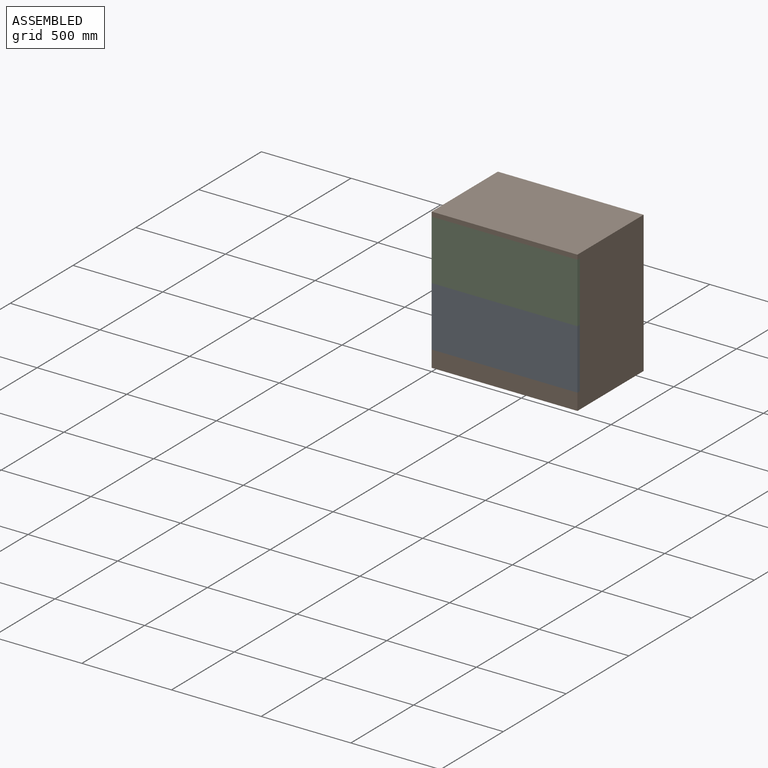
[diagram: assembled view]
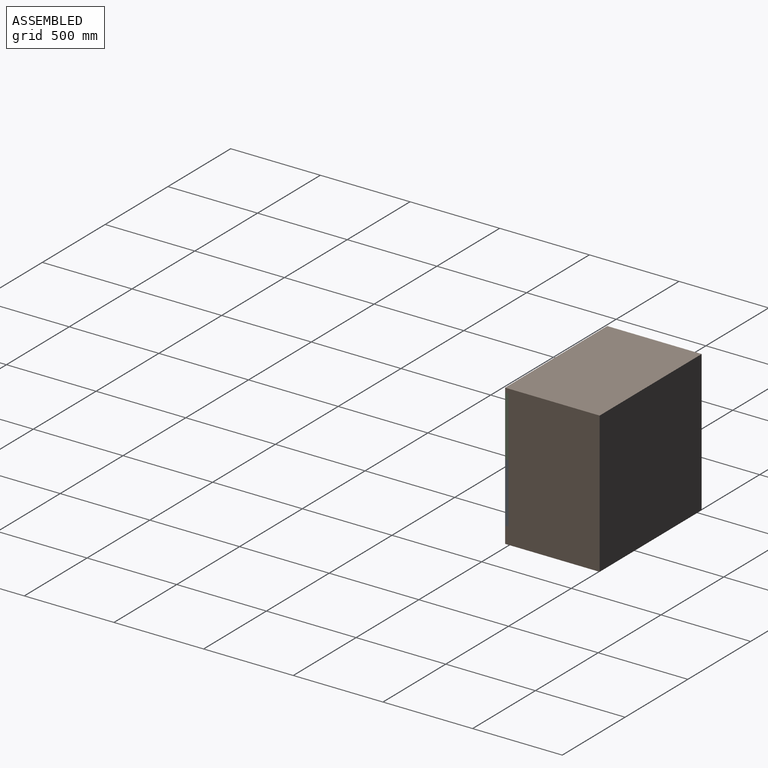
[diagram: assembled view, second angle]
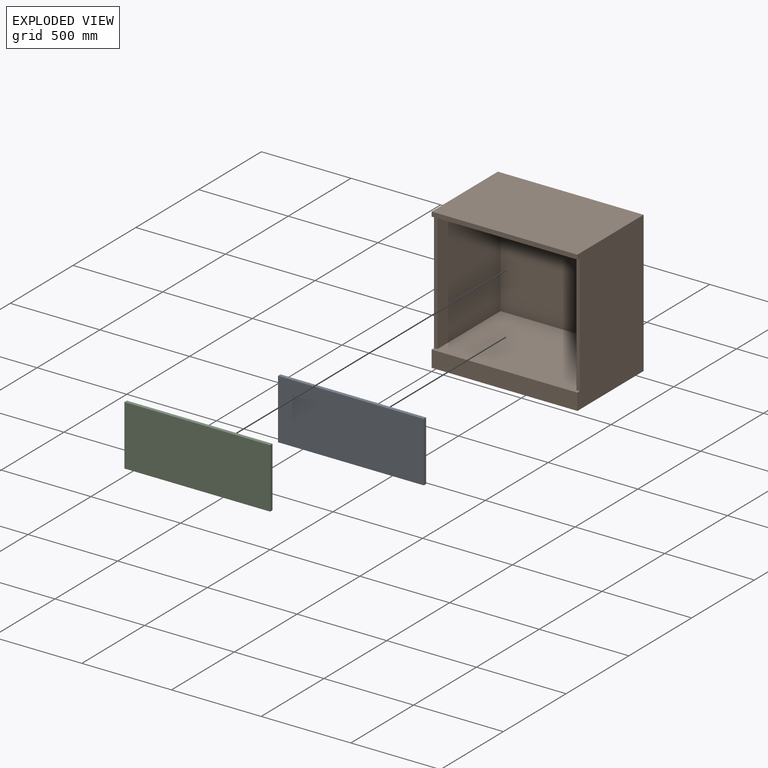
[diagram: exploded view]
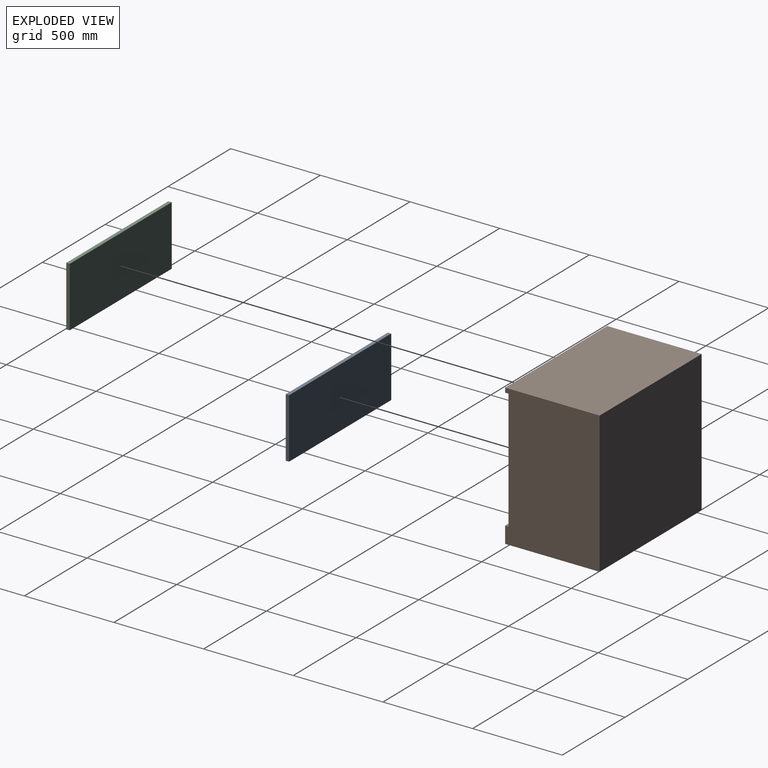
[diagram: exploded view, second angle]
ASSEMBLY  parts=3 mates=2
PART A: 6 faces, bbox 812.8x19.1x335 mm
  f0: plane 812.8x19.05mm, normal (0,0,1), area 15483.8mm2, adj f1,f3,f4,f5
  f1: plane 334.96x19.05mm, normal (-1,0,0), area 6381mm2, adj f0,f2,f4,f5
  f2: plane 812.8x19.05mm, normal (0,0,-1), area 15483.8mm2, adj f1,f3,f4,f5
  f3: plane 334.96x19.05mm, normal (1,0,0), area 6381mm2, adj f0,f2,f4,f5
  f4: plane 812.8x334.96mm, normal (0,1,0), area 272257.5mm2, adj f0,f1,f2,f3
  f5: plane 812.8x334.96mm, normal (0,-1,0), area 272257.5mm2, adj f0,f1,f2,f3
PART B: 14 faces, bbox 812.8x527.1x787.4 mm
  f0: plane 812.8x25.4mm, normal (0,-1,0), area 20645.1mm2, adj f1,f3,f4,f10
  f1: plane 787.4x527.05mm, normal (1,0,0), area 402237.1mm2, adj f0,f2,f3,f5,f6,f8,f10,f13
  f2: plane 812.8x92.08mm, normal (0,-1,0), area 74838.6mm2, adj f1,f4,f5,f8
  f3: plane 812.8x527.05mm, normal (0,0,1), area 428386.2mm2, adj f0,f1,f4,f6
  f4: plane 787.4x527.05mm, normal (-1,0,0), area 402237.1mm2, adj f0,f2,f3,f5,f6,f8,f10,f12
  f5: plane 812.8x527.05mm, normal (0,0,-1), area 428386.2mm2, adj f1,f2,f4,f6
  f6: plane 812.8x787.4mm, normal (0,1,0), area 639998.7mm2, adj f1,f3,f4,f5
  f7: plane 669.93x501.65mm, normal (1,0,0), area 336067.9mm2, adj f8,f10,f11,f12
  f8: plane 812.8x520.7mm, normal (0,0,1), area 404112.1mm2, adj f1,f2,f4,f7,f9,f11,f12,f13
  f9: plane 669.93x501.65mm, normal (-1,0,0), area 336067.9mm2, adj f8,f10,f11,f13
  f10: plane 812.8x520.7mm, normal (0,0,-1), area 404112.1mm2, adj f0,f1,f4,f7,f9,f11,f12,f13
  f11: plane 774.7x669.93mm, normal (0,-1,0), area 518990.9mm2, adj f7,f8,f9,f10
  f12: plane 669.93x19.05mm, normal (0,-1,0), area 12762.1mm2, adj f4,f7,f8,f10
  f13: plane 669.93x19.05mm, normal (0,-1,0), area 12762.1mm2, adj f1,f8,f9,f10
PART C: same geometry as A
PLACE A t=(0,0,92.07)mm
PLACE B at identity
PLACE C t=(0,0,427.04)mm
MATE fastened B.f12 <-> A.f4  axis (0,-1,0) through (0,19.05,92.07)mm
MATE fastened B.f12 <-> C.f4  axis (0,-1,0) through (0,19.05,762)mm
